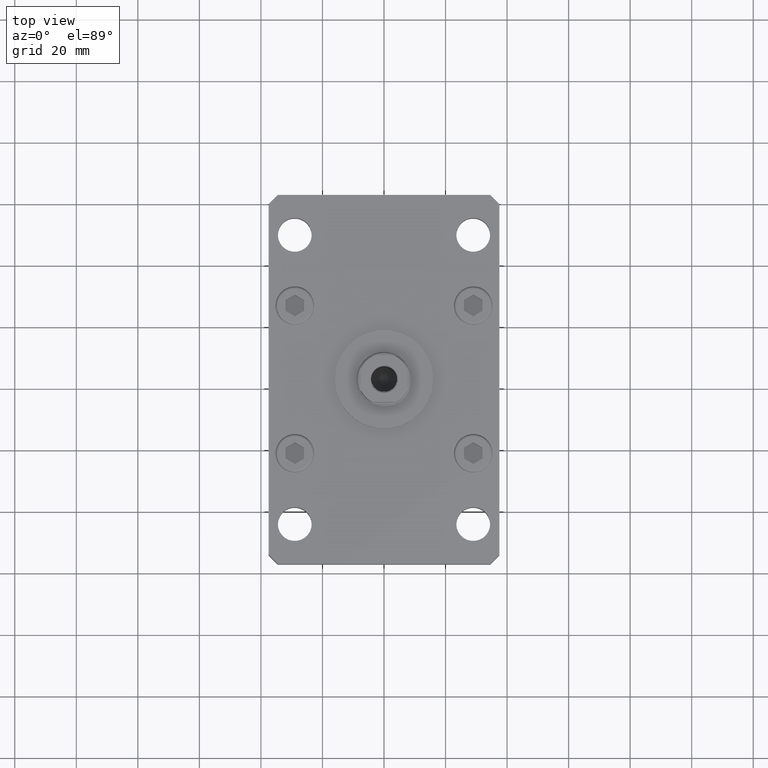
[diagram: clean part render]
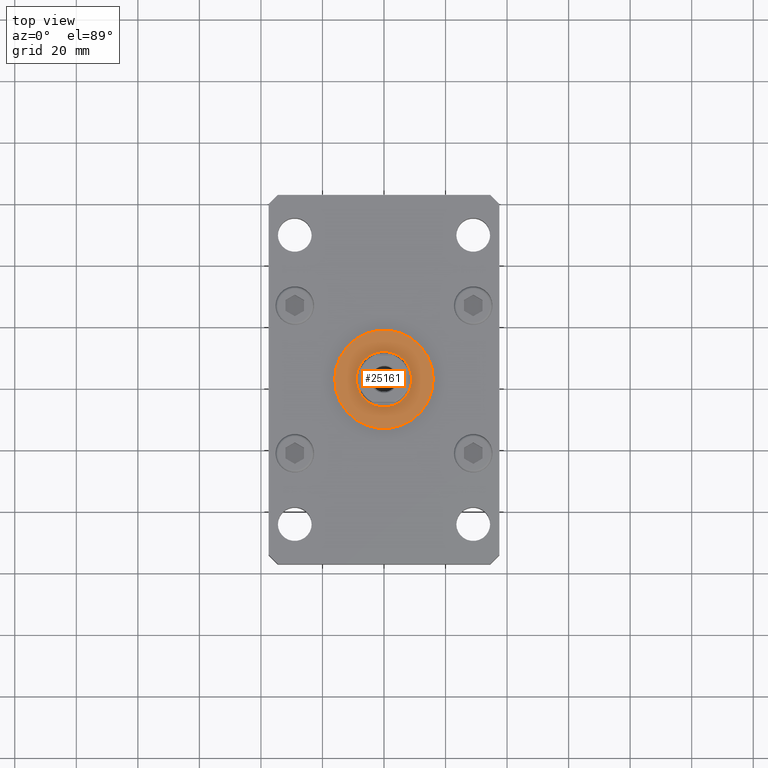
[diagram: same view with one face highlighted and labeled with its STEP entity id]
A machine part, top view. The second image highlights one B-rep face of the part: STEP entity #25161.
In plain terms, the highlighted planar face has unit normal (0, 0, 1).
Its self-contained STEP definition (entity closure, byte-faithful):
#308 = DIRECTION ( 'NONE',  ( 1.000000000000000000, 0.000000000000000000, -0.000000000000000000 ) ) ;
#1925 = CARTESIAN_POINT ( 'NONE',  ( 0.000000000000000000, 0.000000000000000000, 17.00000000000000000 ) ) ;
#3720 = EDGE_CURVE ( 'NONE', #26693, #29067, #7603, .T. ) ;
#5255 = AXIS2_PLACEMENT_3D ( 'NONE', #1925, #30138, #5455 ) ;
#5455 = DIRECTION ( 'NONE',  ( 1.000000000000000000, 0.000000000000000000, 0.000000000000000000 ) ) ;
#5868 = AXIS2_PLACEMENT_3D ( 'NONE', #28697, #44947, #24634 ) ;
#7124 = CIRCLE ( 'NONE', #27952, 9.000000000000000000 ) ;
#7603 = CIRCLE ( 'NONE', #5868, 16.00000000000000000 ) ;
#12493 = DIRECTION ( 'NONE',  ( 0.000000000000000000, 0.000000000000000000, 1.000000000000000000 ) ) ;
#13214 = CIRCLE ( 'NONE', #44366, 9.000000000000000000 ) ;
#13583 = CARTESIAN_POINT ( 'NONE',  ( -16.00000000000000000, 0.000000000000000000, 17.00000000000000000 ) ) ;
#14490 = ORIENTED_EDGE ( 'NONE', *, *, #22020, .F. ) ;
#17059 = DIRECTION ( 'NONE',  ( 1.000000000000000000, 0.000000000000000000, 0.000000000000000000 ) ) ;
#17282 = EDGE_LOOP ( 'NONE', ( #14490, #47585 ) ) ;
#19781 = CARTESIAN_POINT ( 'NONE',  ( 0.000000000000000000, 0.000000000000000000, 17.00000000000000000 ) ) ;
#20462 = CARTESIAN_POINT ( 'NONE',  ( 0.000000000000000000, 0.000000000000000000, 17.00000000000000000 ) ) ;
#22020 = EDGE_CURVE ( 'NONE', #32615, #22541, #7124, .T. ) ;
#22541 = VERTEX_POINT ( 'NONE', #48651 ) ;
#24548 = DIRECTION ( 'NONE',  ( 1.000000000000000000, 0.000000000000000000, 0.000000000000000000 ) ) ;
#24634 = DIRECTION ( 'NONE',  ( 1.000000000000000000, 0.000000000000000000, 0.000000000000000000 ) ) ;
#25161 = ADVANCED_FACE ( 'NONE', ( #28500, #52877 ), #36896, .T. ) ;
#26693 = VERTEX_POINT ( 'NONE', #47546 ) ;
#27952 = AXIS2_PLACEMENT_3D ( 'NONE', #19781, #36324, #17059 ) ;
#28500 = FACE_BOUND ( 'NONE', #17282, .T. ) ;
#28697 = CARTESIAN_POINT ( 'NONE',  ( 0.000000000000000000, 0.000000000000000000, 17.00000000000000000 ) ) ;
#29067 = VERTEX_POINT ( 'NONE', #13583 ) ;
#30138 = DIRECTION ( 'NONE',  ( 0.000000000000000000, 0.000000000000000000, 1.000000000000000000 ) ) ;
#31015 = ORIENTED_EDGE ( 'NONE', *, *, #3720, .T. ) ;
#32566 = CARTESIAN_POINT ( 'NONE',  ( 0.000000000000000000, 0.000000000000000000, 17.00000000000000000 ) ) ;
#32615 = VERTEX_POINT ( 'NONE', #36748 ) ;
#34875 = EDGE_LOOP ( 'NONE', ( #50509, #31015 ) ) ;
#36324 = DIRECTION ( 'NONE',  ( 0.000000000000000000, 0.000000000000000000, 1.000000000000000000 ) ) ;
#36748 = CARTESIAN_POINT ( 'NONE',  ( 9.000000000000000000, 0.000000000000000000, 17.00000000000000000 ) ) ;
#36896 = PLANE ( 'NONE',  #50426 ) ;
#44366 = AXIS2_PLACEMENT_3D ( 'NONE', #20462, #45406, #24548 ) ;
#44947 = DIRECTION ( 'NONE',  ( 0.000000000000000000, 0.000000000000000000, 1.000000000000000000 ) ) ;
#45406 = DIRECTION ( 'NONE',  ( 0.000000000000000000, 0.000000000000000000, 1.000000000000000000 ) ) ;
#46409 = EDGE_CURVE ( 'NONE', #29067, #26693, #51991, .T. ) ;
#47546 = CARTESIAN_POINT ( 'NONE',  ( 16.00000000000000000, 1.959434878635765131E-15, 17.00000000000000000 ) ) ;
#47585 = ORIENTED_EDGE ( 'NONE', *, *, #51533, .F. ) ;
#48651 = CARTESIAN_POINT ( 'NONE',  ( -9.000000000000000000, 1.102182119232617714E-15, 17.00000000000000000 ) ) ;
#50426 = AXIS2_PLACEMENT_3D ( 'NONE', #32566, #12493, #308 ) ;
#50509 = ORIENTED_EDGE ( 'NONE', *, *, #46409, .T. ) ;
#51533 = EDGE_CURVE ( 'NONE', #22541, #32615, #13214, .T. ) ;
#51991 = CIRCLE ( 'NONE', #5255, 16.00000000000000000 ) ;
#52877 = FACE_OUTER_BOUND ( 'NONE', #34875, .T. ) ;